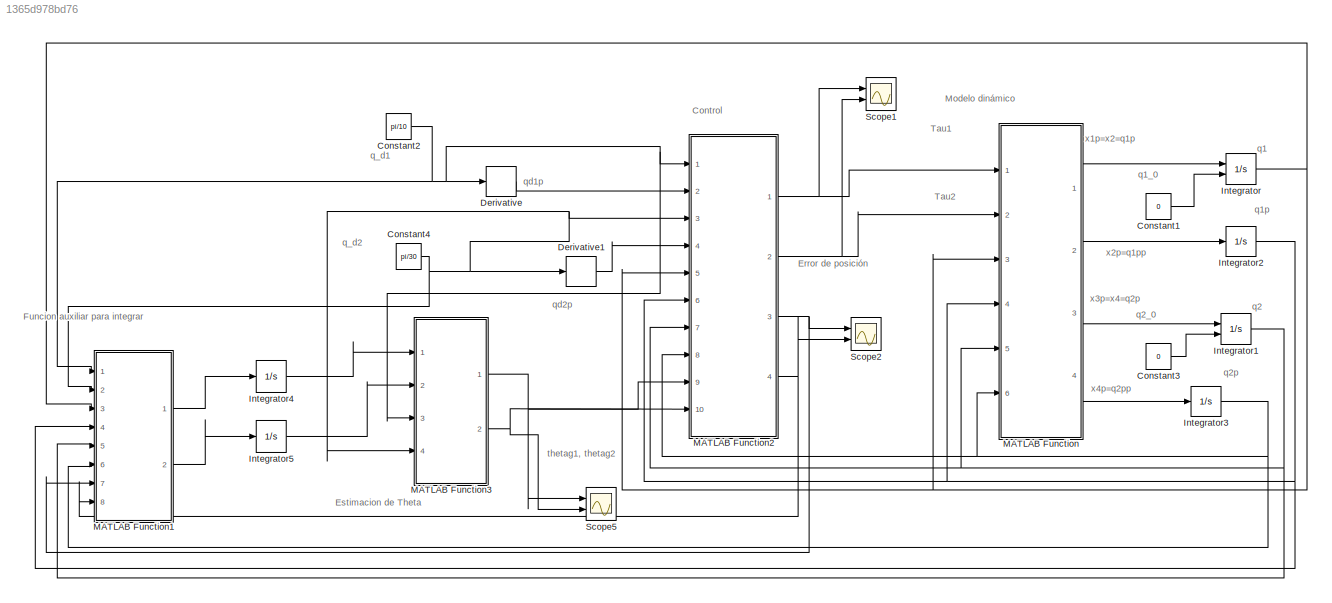
MODEL slx_1365d978bd76
KIND model
CONFIG AbsTol = auto
CONFIG EnableMultiTasking = off
CONFIG FixedStep = auto
CONFIG MaxStep = auto
CONFIG MinStep = auto
CONFIG RelTol = 1e-3
CONFIG SampleTimeConstraint = Unconstrained
CONFIG SolverName = VariableStepAuto
CONFIG StartTime = 0.0
CONFIG StopTime = 50
BLOCK [Constant] Constant1
  Value = 0
BLOCK [Constant] Constant2
  Value = pi/10
BLOCK [Constant] Constant3
  Value = 0
BLOCK [Constant] Constant4
  Value = pi/30
BLOCK [Derivative] Derivative
BLOCK [Derivative] Derivative1
BLOCK [Integrator] Integrator
  InitialConditionSource = external
  Ports = [2, 1]
BLOCK [Integrator] Integrator1
  InitialConditionSource = external
  Ports = [2, 1]
BLOCK [Integrator] Integrator2
  Ports = [1, 1]
BLOCK [Integrator] Integrator3
  Ports = [1, 1]
BLOCK [Integrator] Integrator4
  Ports = [1, 1]
BLOCK [Integrator] Integrator5
  Ports = [1, 1]
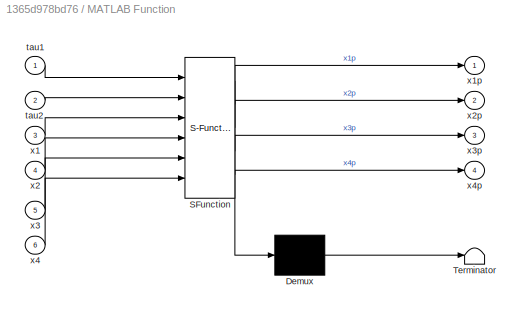
BLOCK [SubSystem] MATLAB Function
  ErrorFcn = Stateflow.Translate.translate
  PermitHierarchicalResolution = ExplicitOnly
  Ports = [6, 4]
  RequestExecContextInheritance = off
  SFBlockType = MATLAB Function
  TreatAsAtomicUnit = on
BLOCK [Demux] MATLAB Function/ Demux 
  Outputs = 1
  Ports = [1, 1]
BLOCK [S-Function] MATLAB Function/ SFunction 
  EnableBusSupport = on
  FunctionName = sf_sfun
  PortCounts = [6 5]
  Ports = [6, 5]
  SFcnIsStateOwnerBlock = off
  SFunctionDeploymentMode = off
  Tag = Stateflow S-Function 2
BLOCK [Terminator] MATLAB Function/ Terminator 
BLOCK [Inport] MATLAB Function/tau1
BLOCK [Inport] MATLAB Function/tau2
  Port = 2
BLOCK [Inport] MATLAB Function/x1
  Port = 3
BLOCK [Outport] MATLAB Function/x1p
BLOCK [Inport] MATLAB Function/x2
  Port = 4
BLOCK [Outport] MATLAB Function/x2p
  Port = 2
BLOCK [Inport] MATLAB Function/x3
  Port = 5
BLOCK [Outport] MATLAB Function/x3p
  Port = 3
BLOCK [Inport] MATLAB Function/x4
  Port = 6
BLOCK [Outport] MATLAB Function/x4p
  Port = 4
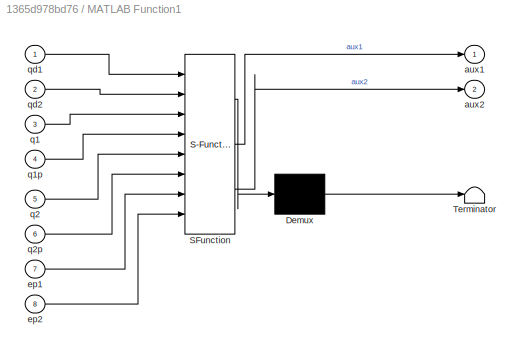
BLOCK [SubSystem] MATLAB Function1
  ErrorFcn = Stateflow.Translate.translate
  PermitHierarchicalResolution = ExplicitOnly
  Ports = [8, 2]
  RequestExecContextInheritance = off
  SFBlockType = MATLAB Function
  TreatAsAtomicUnit = on
BLOCK [Demux] MATLAB Function1/ Demux 
  Outputs = 1
  Ports = [1, 1]
BLOCK [S-Function] MATLAB Function1/ SFunction 
  EnableBusSupport = on
  FunctionName = sf_sfun
  PortCounts = [8 3]
  Ports = [8, 3]
  SFcnIsStateOwnerBlock = off
  SFunctionDeploymentMode = off
  Tag = Stateflow S-Function 1
BLOCK [Terminator] MATLAB Function1/ Terminator 
BLOCK [Outport] MATLAB Function1/aux1
BLOCK [Outport] MATLAB Function1/aux2
  Port = 2
BLOCK [Inport] MATLAB Function1/ep1
  Port = 7
BLOCK [Inport] MATLAB Function1/ep2
  Port = 8
BLOCK [Inport] MATLAB Function1/q1
  Port = 3
BLOCK [Inport] MATLAB Function1/q1p
  Port = 4
BLOCK [Inport] MATLAB Function1/q2
  Port = 5
BLOCK [Inport] MATLAB Function1/q2p
  Port = 6
BLOCK [Inport] MATLAB Function1/qd1
BLOCK [Inport] MATLAB Function1/qd2
  Port = 2
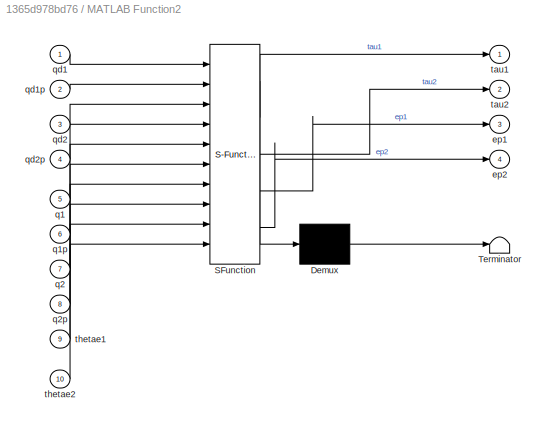
BLOCK [SubSystem] MATLAB Function2
  ErrorFcn = Stateflow.Translate.translate
  PermitHierarchicalResolution = ExplicitOnly
  Ports = [10, 4]
  RequestExecContextInheritance = off
  SFBlockType = MATLAB Function
  TreatAsAtomicUnit = on
BLOCK [Demux] MATLAB Function2/ Demux 
  Outputs = 1
  Ports = [1, 1]
BLOCK [S-Function] MATLAB Function2/ SFunction 
  EnableBusSupport = on
  FunctionName = sf_sfun
  PortCounts = [10 5]
  Ports = [10, 5]
  SFcnIsStateOwnerBlock = off
  SFunctionDeploymentMode = off
  Tag = Stateflow S-Function 3
BLOCK [Terminator] MATLAB Function2/ Terminator 
BLOCK [Outport] MATLAB Function2/ep1
  Port = 3
BLOCK [Outport] MATLAB Function2/ep2
  Port = 4
BLOCK [Inport] MATLAB Function2/q1
  Port = 5
BLOCK [Inport] MATLAB Function2/q1p
  Port = 6
BLOCK [Inport] MATLAB Function2/q2
  Port = 7
BLOCK [Inport] MATLAB Function2/q2p
  Port = 8
BLOCK [Inport] MATLAB Function2/qd1
BLOCK [Inport] MATLAB Function2/qd1p
  Port = 2
BLOCK [Inport] MATLAB Function2/qd2
  Port = 3
BLOCK [Inport] MATLAB Function2/qd2p
  Port = 4
BLOCK [Outport] MATLAB Function2/tau1
BLOCK [Outport] MATLAB Function2/tau2
  Port = 2
BLOCK [Inport] MATLAB Function2/thetae1
  Port = 9
BLOCK [Inport] MATLAB Function2/thetae2
  Port = 10
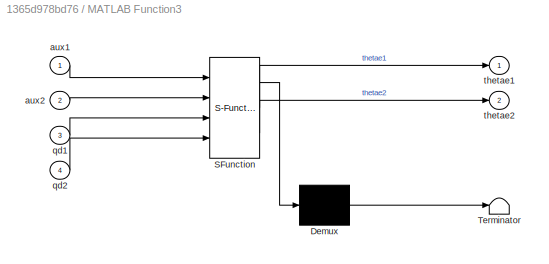
BLOCK [SubSystem] MATLAB Function3
  ErrorFcn = Stateflow.Translate.translate
  PermitHierarchicalResolution = ExplicitOnly
  Ports = [4, 2]
  RequestExecContextInheritance = off
  SFBlockType = MATLAB Function
  TreatAsAtomicUnit = on
BLOCK [Demux] MATLAB Function3/ Demux 
  Outputs = 1
  Ports = [1, 1]
BLOCK [S-Function] MATLAB Function3/ SFunction 
  EnableBusSupport = on
  FunctionName = sf_sfun
  PortCounts = [4 3]
  Ports = [4, 3]
  SFcnIsStateOwnerBlock = off
  SFunctionDeploymentMode = off
  Tag = Stateflow S-Function 4
BLOCK [Terminator] MATLAB Function3/ Terminator 
BLOCK [Inport] MATLAB Function3/aux1
BLOCK [Inport] MATLAB Function3/aux2
  Port = 2
BLOCK [Inport] MATLAB Function3/qd1
  Port = 3
BLOCK [Inport] MATLAB Function3/qd2
  Port = 4
BLOCK [Outport] MATLAB Function3/thetae1
BLOCK [Outport] MATLAB Function3/thetae2
  Port = 2
BLOCK [Scope] Scope1
  Floating = off
  NumInputPorts = 2
  Ports = [2]
  ScopeSpecificationString = Simulink.scopes.TimeScopeBlockCfg('CurrentConfiguration', extmgr.ConfigurationSet(extmgr.Configuration('Core','General UI',true),extmgr.Configuration('Core','Source UI',true),extmgr.Configuration('Sources','WiredSimulink',true,'DataLoggingVariableName','ScopeData1'),extmgr.Configuration('Visuals','Time Domain',true,'SerializedDisplays',{struct('MinYLimReal','-1.49723','MaxYLimReal','12.79795','YLa...<+1475ch>
BLOCK [Scope] Scope2
  Floating = off
  NumInputPorts = 2
  Ports = [2]
  ScopeSpecificationString = Simulink.scopes.TimeScopeBlockCfg('CurrentConfiguration', extmgr.ConfigurationSet(extmgr.Configuration('Core','General UI',true),extmgr.Configuration('Core','Source UI',true),extmgr.Configuration('Sources','WiredSimulink',true,'DataLoggingVariableName','ScopeData2'),extmgr.Configuration('Visuals','Time Domain',true,'SerializedDisplays',{struct('MinYLimReal','-0.1','MaxYLimReal','0.4','YLabelReal',...<+1629ch>
BLOCK [Scope] Scope5
  Floating = off
  NumInputPorts = 2
  Ports = [2]
  ScopeSpecificationString = Simulink.scopes.TimeScopeBlockCfg('CurrentConfiguration', extmgr.ConfigurationSet(extmgr.Configuration('Core','General UI',true),extmgr.Configuration('Core','Source UI',true),extmgr.Configuration('Sources','WiredSimulink',true,'DataLoggingVariableName','ScopeData1'),extmgr.Configuration('Visuals','Time Domain',true,'SerializedDisplays',{struct('MinYLimReal','-15.69336','MaxYLimReal','5.63472','YLa...<+1692ch>
ANNOTATION (root): q1_0
ANNOTATION (root): q2_0
ANNOTATION (root): thetag1, thetag2
ANNOTATION (root): Tau1
ANNOTATION (root): Tau2
ANNOTATION (root): x1p=x2=q1p
ANNOTATION (root): x2p=q1pp
ANNOTATION (root): x3p=x4=q2p
ANNOTATION (root): x4p=q2pp
ANNOTATION (root): Control
ANNOTATION (root): Error de posición
ANNOTATION (root): Estimacion de Theta
ANNOTATION (root): Funcion auxiliar para integrar
ANNOTATION (root): Modelo dinámico
ANNOTATION (root): q_d1
ANNOTATION (root): q_d2
ANNOTATION (root): q2
ANNOTATION (root): q1
ANNOTATION (root): q1p
ANNOTATION (root): q2p
ANNOTATION (root): qd1p
ANNOTATION (root): qd2p
LINE Constant1:1 -> Integrator:2
NET Constant2:1 -> Derivative:1, MATLAB Function1:1, MATLAB Function2:1, MATLAB Function3:3
LINE Constant3:1 -> Integrator1:2
NET Constant4:1 -> Derivative1:1, MATLAB Function1:2, MATLAB Function2:3, MATLAB Function3:4
LINE Derivative1:1 -> MATLAB Function2:4
LINE Derivative:1 -> MATLAB Function2:2
NET Integrator1:1 -> MATLAB Function1:5, MATLAB Function2:7, MATLAB Function:5
NET Integrator2:1 -> MATLAB Function1:4, MATLAB Function2:6, MATLAB Function:4
NET Integrator3:1 -> MATLAB Function1:6, MATLAB Function2:8, MATLAB Function:6
LINE Integrator4:1 -> MATLAB Function3:1
LINE Integrator5:1 -> MATLAB Function3:2
NET Integrator:1 -> MATLAB Function1:3, MATLAB Function2:5, MATLAB Function:3
LINE MATLAB Function1:1 -> Integrator4:1
LINE MATLAB Function1:2 -> Integrator5:1
NET MATLAB Function2:1 -> MATLAB Function:1, Scope1:1
NET MATLAB Function2:2 -> MATLAB Function:2, Scope1:2
NET MATLAB Function2:3 -> MATLAB Function1:7, Scope2:1
NET MATLAB Function2:4 -> MATLAB Function1:8, Scope2:2
NET MATLAB Function3:1 -> MATLAB Function2:9, Scope5:1
NET MATLAB Function3:2 -> MATLAB Function2:10, Scope5:2
LINE MATLAB Function:1 -> Integrator:1
LINE MATLAB Function:2 -> Integrator2:1
LINE MATLAB Function:3 -> Integrator1:1
LINE MATLAB Function:4 -> Integrator3:1
note: NET lines group one-source signal fan-out (src -> all destinations, sorted); 1:1 wires keep LINE
CHART MATLAB Function1 states=1 transitions=1
  STATE_LABEL 'eML_blk_kernel()'
  STATE_LABEL 'SCRIPT:\nfunction [aux1,aux2]= fcn(qd1,qd2,q1,q1p,q2,q2p,ep1,ep2)\n% Parámetros\nm1=6.5225;l1=0.26;lc1=0.0983;\ng=9.81;I1=0.1213;\ne0=5;\n%---ERROR PARA EL ESLABÓN 1 ------\nep1=qd1-q1;     %qtilde\n%ev1=qd1p-q1p;   %qtildepunto\n%---ERROR PARA EL ESLABÓN 2 ------\nep2=qd2-q2;     %qtilde\n%ev2=qd2p-q2p;   %qtildepunto\n%------- VECTOR DE  ERROR DE POSICIÓN ------\nep=[ ep1;ep2];\n%------- VECTOR DE  QP ------\n...<+311ch>'
CHART MATLAB Function states=1 transitions=1
  STATE_LABEL 'eML_blk_kernel()'
  STATE_LABEL 'SCRIPT:\nfunction  [x1p,x2p,x3p,x4p] = fcn(tau1,tau2,x1,x2,x3,x4)\n% Parámetros\nm1=6.5225;I1=0.1213;\nI2=0.0116;l1=0.26;\nlc1=0.0983;lc2=0.0229;g=9.81;\nqd1 = pi/10;\nm2=2.0458;\nl2 = 0.26;\n%-------------------------------------------\nM11=m1*lc1^2+m2*l1^2+m2*(l1^2+lc2^2+2*l1*lc2*cos(x3))+I1+I2;\nM12=m2*lc2^2+m2*l1*lc2*cos(x3)+I2;\nM21=m2*lc2^2+m2*l1*lc2*cos(x3)+I2;\nM22=m2*lc2^2+I2;\nC11=-m2*l1*lc2*sin(x3)*x...<+359ch>'
CHART MATLAB Function2 states=1 transitions=1
  STATE_LABEL 'eML_blk_kernel()'
  STATE_LABEL 'SCRIPT:\nfunction [tau1, tau2, ep1, ep2] = fcn(qd1,qd1p,qd2, ...\n    qd2p,q1,q1p,q2,q2p,thetae1,thetae2)\n% Parámetros \nm1=6.5225;l1=0.26;lc1=0.0983;\ng=9.81;I1=0.1213;\n%-------- MATRIZ DE Kp ------------  \nKp=[30 0;\n    0 30];\n%-------- MATRIZ DE Kv ---------------\nKv=[7 0;\n    0 3];\n%---ERROR PARA EL ESLABÓN 1 ------\nep1=qd1-q1;     %qtilde\nev1=qd1p-q1p;   %qtildepunto\n%---ERROR PARA EL ESLABÓN 2 -...<+655ch>'
CHART MATLAB Function3 states=1 transitions=1
  STATE_LABEL 'eML_blk_kernel()'
  STATE_LABEL 'SCRIPT:\nfunction [thetae1,thetae2]  = fcn(aux1,aux2, qd1, qd2)\n%------- MATRIZ GAMMA ----------------\ngamma=[500 0;\n        0 10];\naux=[aux1;\n     aux2];\n\nm1=6.5225;l1=0.26;lc1=0.0983;\ng=9.81;I1=0.1213;\ne0=5;\n\n%---------- Vector de theta_0 -----------------\nthetae1=500*l1*g*sin(qd1)*aux1;\nthetae2=10*g*sin(qd1+qd2)*aux1+10*g*sin(qd1+qd2)*aux2;\n\n\n\n'
CHART  states=0 transitions=0
CHART  states=0 transitions=0
CHART  states=0 transitions=0
CHART  states=0 transitions=0
